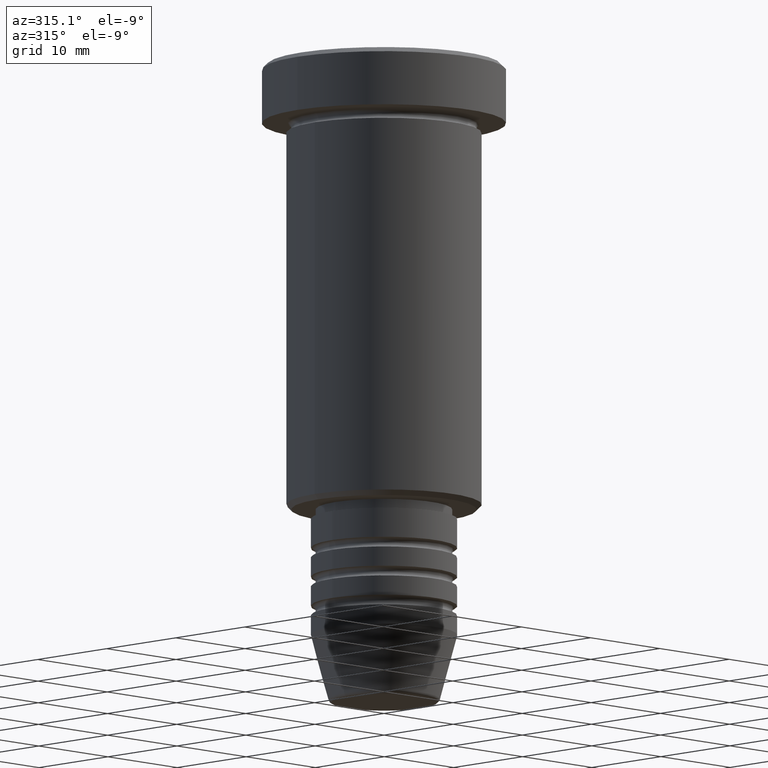
[diagram: clean part render]
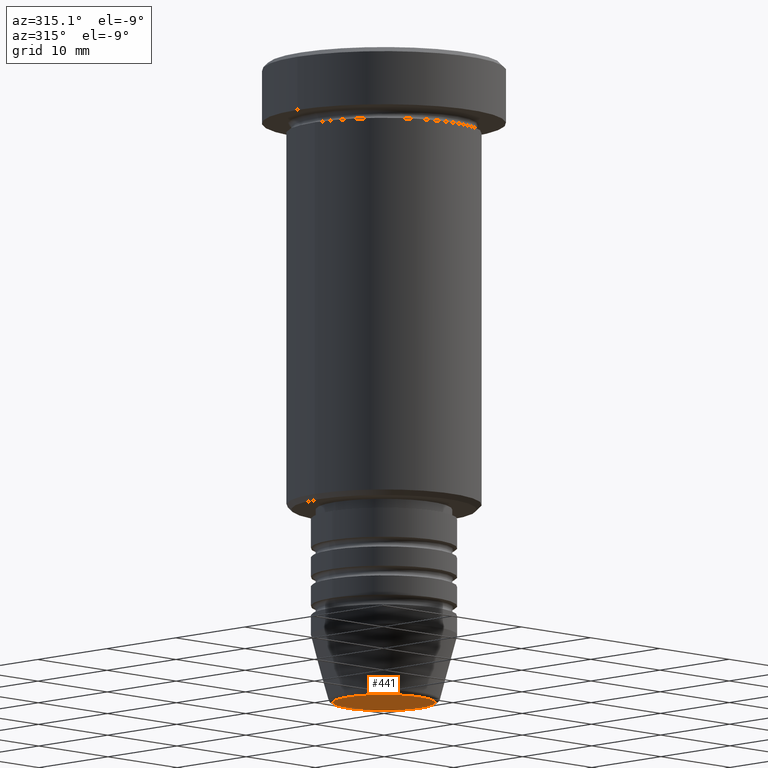
[diagram: same view with one face highlighted and labeled with its STEP entity id]
A machine part, auxiliary view. The second image highlights one B-rep face of the part: STEP entity #441.
In plain terms, the highlighted planar face has unit normal (0, -0, 1).
Its self-contained STEP definition (entity closure, byte-faithful):
#1 = ORIENTED_EDGE ( 'NONE', *, *, #783, .T. ) ;
#183 = VERTEX_POINT ( 'NONE', #397 ) ;
#185 = PLANE ( 'NONE',  #1052 ) ;
#201 = CARTESIAN_POINT ( 'NONE',  ( 5.240692158992654726, 0.000000000000000000, -66.00000000000000000 ) ) ;
#339 = AXIS2_PLACEMENT_3D ( 'NONE', #617, #990, #411 ) ;
#397 = CARTESIAN_POINT ( 'NONE',  ( -5.240692158992654726, 6.713726370671654515E-16, -66.00000000000000000 ) ) ;
#411 = DIRECTION ( 'NONE',  ( 1.000000000000000000, 0.000000000000000000, 0.000000000000000000 ) ) ;
#441 = ADVANCED_FACE ( 'NONE', ( #1165 ), #185, .F. ) ;
#456 = CIRCLE ( 'NONE', #339, 5.240692158992654726 ) ;
#485 = VERTEX_POINT ( 'NONE', #201 ) ;
#492 = CIRCLE ( 'NONE', #536, 5.240692158992654726 ) ;
#536 = AXIS2_PLACEMENT_3D ( 'NONE', #1104, #1000, #1077 ) ;
#544 = DIRECTION ( 'NONE',  ( 1.000000000000000000, 0.000000000000000000, 0.000000000000000000 ) ) ;
#617 = CARTESIAN_POINT ( 'NONE',  ( 0.000000000000000000, 0.000000000000000000, -66.00000000000000000 ) ) ;
#629 = EDGE_CURVE ( 'NONE', #183, #485, #456, .T. ) ;
#698 = DIRECTION ( 'NONE',  ( 0.000000000000000000, -0.000000000000000000, 1.000000000000000000 ) ) ;
#783 = EDGE_CURVE ( 'NONE', #485, #183, #492, .T. ) ;
#812 = CARTESIAN_POINT ( 'NONE',  ( 0.000000000000000000, 0.000000000000000000, -66.00000000000000000 ) ) ;
#836 = ORIENTED_EDGE ( 'NONE', *, *, #629, .T. ) ;
#860 = EDGE_LOOP ( 'NONE', ( #1, #836 ) ) ;
#990 = DIRECTION ( 'NONE',  ( 0.000000000000000000, 0.000000000000000000, -1.000000000000000000 ) ) ;
#1000 = DIRECTION ( 'NONE',  ( 0.000000000000000000, 0.000000000000000000, -1.000000000000000000 ) ) ;
#1052 = AXIS2_PLACEMENT_3D ( 'NONE', #812, #698, #544 ) ;
#1077 = DIRECTION ( 'NONE',  ( 1.000000000000000000, 0.000000000000000000, 0.000000000000000000 ) ) ;
#1104 = CARTESIAN_POINT ( 'NONE',  ( 0.000000000000000000, 0.000000000000000000, -66.00000000000000000 ) ) ;
#1165 = FACE_OUTER_BOUND ( 'NONE', #860, .T. ) ;